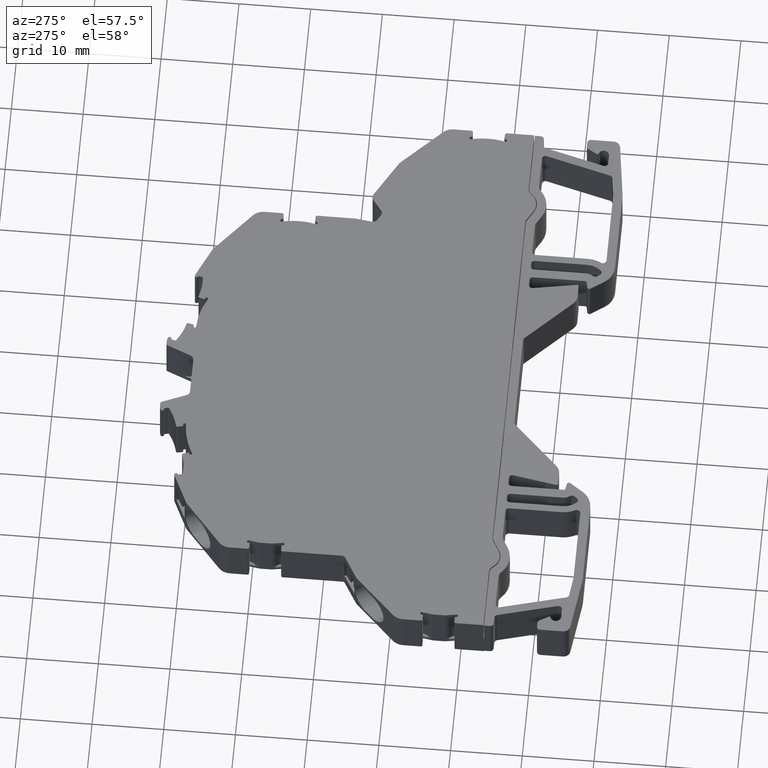
[diagram: clean part render]
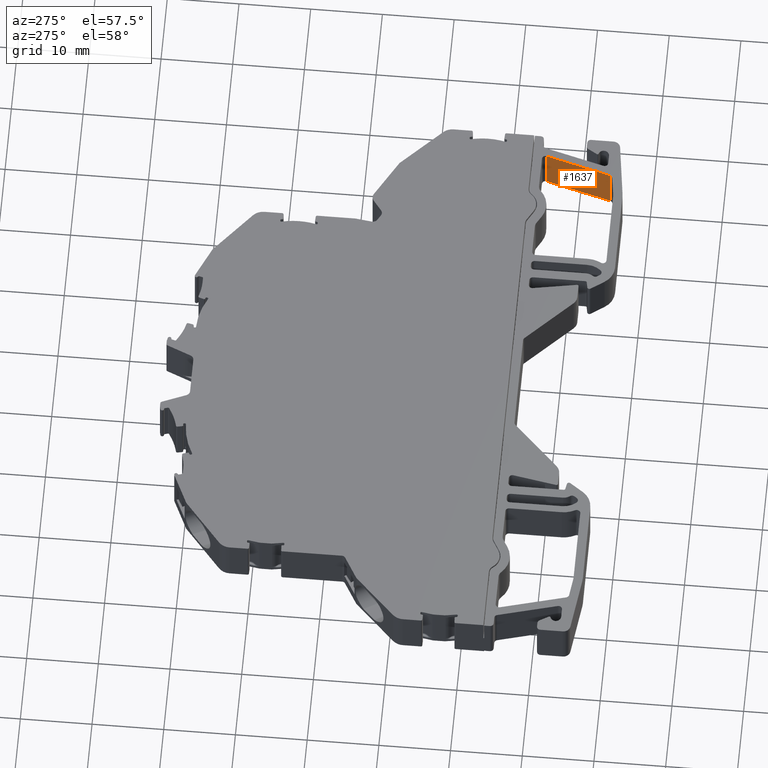
[diagram: same view with one face highlighted and labeled with its STEP entity id]
A machine part, auxiliary view. The second image highlights one B-rep face of the part: STEP entity #1637.
In plain terms, the highlighted planar face has unit normal (-0.9659, 0.2588, 0).
Its self-contained STEP definition (entity closure, byte-faithful):
#1637 = ADVANCED_FACE ( 'NONE', ( #4693 ), #4733, .T. ) ;
#2229 = EDGE_LOOP ( 'NONE', ( #26922, #29431, #29386, #29469 ) ) ;
#4045 = EDGE_CURVE ( 'NONE', #22703, #21098, #4553, .T. ) ;
#4553 = LINE ( 'NONE', #4993, #9470 ) ;
#4693 = FACE_OUTER_BOUND ( 'NONE', #2229, .T. ) ;
#4697 = CARTESIAN_POINT ( 'NONE',  ( 523.5642596169259400, -345.2243926358814900, -54.50000000000000000 ) ) ;
#4704 = DIRECTION ( 'NONE',  ( -0.9659301959968638100, 0.2588027365803159400, 0.0000000000000000000 ) ) ;
#4733 = PLANE ( 'NONE',  #10883 ) ;
#4744 = DIRECTION ( 'NONE',  ( -0.2588027365803158800, -0.9659301959968636900, 0.0000000000000000000 ) ) ;
#4993 = CARTESIAN_POINT ( 'NONE',  ( 523.5642596169259400, -345.2243926358814900, -53.75000000000000000 ) ) ;
#7543 = LINE ( 'NONE', #7578, #9223 ) ;
#7576 = DIRECTION ( 'NONE',  ( -0.2588027365803158800, -0.9659301959968636900, 0.0000000000000000000 ) ) ;
#7578 = CARTESIAN_POINT ( 'NONE',  ( 523.5642596169259400, -345.2243926358814900, -60.25000000000000000 ) ) ;
#8149 = CARTESIAN_POINT ( 'NONE',  ( 521.1429002879118600, -354.2616390041309300, -54.50000000000000000 ) ) ;
#8166 = DIRECTION ( 'NONE',  ( 0.0000000000000000000, 0.0000000000000000000, 1.000000000000000000 ) ) ;
#8202 = LINE ( 'NONE', #8149, #9964 ) ;
#8264 = LINE ( 'NONE', #8290, #10106 ) ;
#8290 = CARTESIAN_POINT ( 'NONE',  ( 523.5642596169259400, -345.2243926358814900, -54.50000000000000000 ) ) ;
#8392 = DIRECTION ( 'NONE',  ( -0.0000000000000000000, -0.0000000000000000000, -1.000000000000000000 ) ) ;
#9223 = VECTOR ( 'NONE', #7576, 1000.000000000000100 ) ;
#9470 = VECTOR ( 'NONE', #11510, 1000.000000000000200 ) ;
#9964 = VECTOR ( 'NONE', #8166, 1000.000000000000000 ) ;
#10106 = VECTOR ( 'NONE', #8392, 1000.000000000000000 ) ;
#10883 = AXIS2_PLACEMENT_3D ( 'NONE', #4697, #4704, #4744 ) ;
#11510 = DIRECTION ( 'NONE',  ( -0.2588027365802987300, -0.9659301959968682500, 0.0000000000000000000 ) ) ;
#11960 = CARTESIAN_POINT ( 'NONE',  ( 523.5642596169258200, -345.2243926358814900, -53.75000000000000000 ) ) ;
#12529 = CARTESIAN_POINT ( 'NONE',  ( 523.5642596169258200, -345.2243926358814900, -60.25000000000000700 ) ) ;
#15185 = CARTESIAN_POINT ( 'NONE',  ( 521.1429002879118600, -354.2616390041309300, -60.25000000000000700 ) ) ;
#15195 = CARTESIAN_POINT ( 'NONE',  ( 521.1429002879118600, -354.2616390041309800, -53.75000000000000000 ) ) ;
#21098 = VERTEX_POINT ( 'NONE', #15195 ) ;
#21177 = VERTEX_POINT ( 'NONE', #15185 ) ;
#22703 = VERTEX_POINT ( 'NONE', #11960 ) ;
#22866 = VERTEX_POINT ( 'NONE', #12529 ) ;
#26922 = ORIENTED_EDGE ( 'NONE', *, *, #27089, .T. ) ;
#27089 = EDGE_CURVE ( 'NONE', #21177, #21098, #8202, .T. ) ;
#27104 = EDGE_CURVE ( 'NONE', #22703, #22866, #8264, .T. ) ;
#28232 = EDGE_CURVE ( 'NONE', #22866, #21177, #7543, .T. ) ;
#29386 = ORIENTED_EDGE ( 'NONE', *, *, #27104, .T. ) ;
#29431 = ORIENTED_EDGE ( 'NONE', *, *, #4045, .F. ) ;
#29469 = ORIENTED_EDGE ( 'NONE', *, *, #28232, .T. ) ;